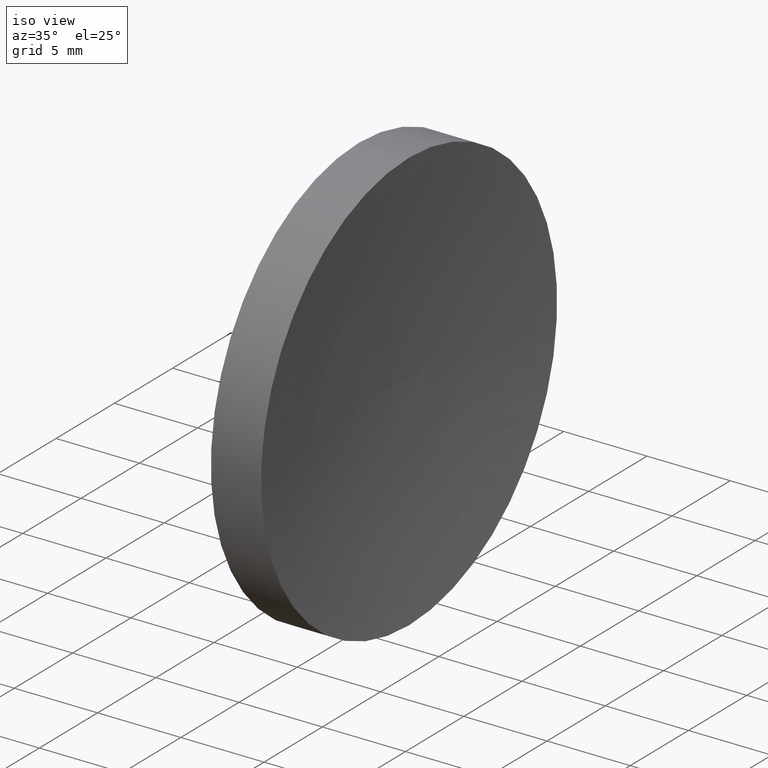
[diagram: clean part render]
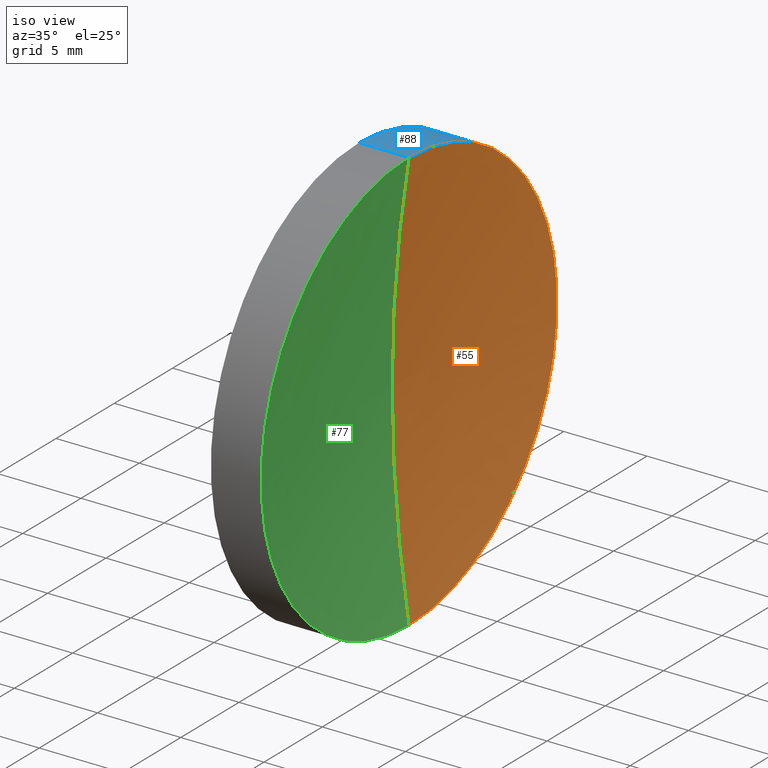
[diagram: same view with three faces highlighted in distinct colors, each labeled with its STEP entity id]
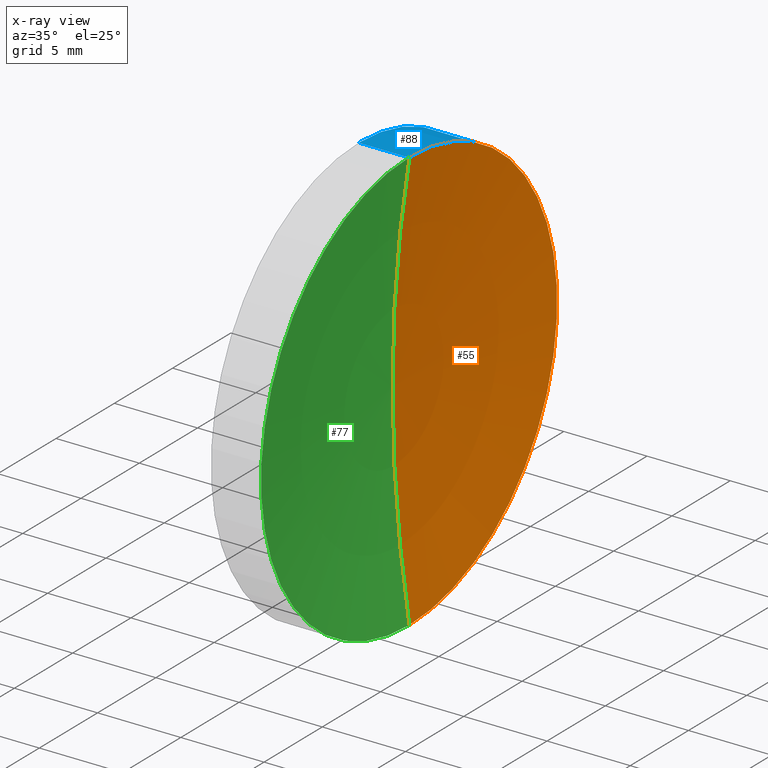
[diagram: x-ray of the same camera — body ghosted, the three highlighted faces saturated]
A machine part, iso view with three faces highlighted in distinct colors.
The next image is the same camera in x-ray (body ghosted, the three faces saturated) — at least one of them is partly hidden behind the body in this view.
Their STEP definitions:

[orange] entity #55 — the highlighted toroidal blend (fillet) surface has major radius 0.0214 mm and minor (blend) radius 80.23 mm.
#2 = CARTESIAN_POINT ( 'NONE',  ( 201.5929279294802000, 71.19398908659370300, 0.02143188014522290400 ) ) ;
#3 = DIRECTION ( 'NONE',  ( 0.0000000000000000000, 0.0000000000000000000, 1.000000000000000000 ) ) ;
#12 = DIRECTION ( 'NONE',  ( 0.0000000000000000000, -1.000000000000000000, 0.0000000000000000000 ) ) ;
#15 = ORIENTED_EDGE ( 'NONE', *, *, #105, .T. ) ;
#34 = FACE_OUTER_BOUND ( 'NONE', #79, .T. ) ;
#35 = CARTESIAN_POINT ( 'NONE',  ( 122.3779162781598300, 71.19398908659370300, -12.69999999999996600 ) ) ;
#42 = CIRCLE ( 'NONE', #161, 80.22999999999996100 ) ;
#43 = AXIS2_PLACEMENT_3D ( 'NONE', #65, #82, #3 ) ;
#51 = CIRCLE ( 'NONE', #43, 12.69999999999997400 ) ;
#55 = ADVANCED_FACE ( 'NONE', ( #34 ), #160, .F. ) ;
#63 = DIRECTION ( 'NONE',  ( 0.0000000000000000000, -1.729750443451883900E-016, 1.000000000000000000 ) ) ;
#65 = CARTESIAN_POINT ( 'NONE',  ( 122.3779162781598300, 71.19398908659370300, 0.0000000000000000000 ) ) ;
#66 = CIRCLE ( 'NONE', #128, 80.22999999999996100 ) ;
#75 = CARTESIAN_POINT ( 'NONE',  ( 122.3779162781598300, 71.19398908659370300, 12.69999999999996600 ) ) ;
#79 = EDGE_LOOP ( 'NONE', ( #149, #117, #15 ) ) ;
#80 = DIRECTION ( 'NONE',  ( 0.0000000000000000000, 0.0000000000000000000, 1.000000000000000000 ) ) ;
#82 = DIRECTION ( 'NONE',  ( -1.000000000000000000, -0.0000000000000000000, -0.0000000000000000000 ) ) ;
#87 = VERTEX_POINT ( 'NONE', #116 ) ;
#90 = VERTEX_POINT ( 'NONE', #35 ) ;
#95 = AXIS2_PLACEMENT_3D ( 'NONE', #115, #135, #80 ) ;
#105 = EDGE_CURVE ( 'NONE', #155, #87, #42, .T. ) ;
#115 = CARTESIAN_POINT ( 'NONE',  ( 201.5929279294802000, 71.19398908659370300, 0.0000000000000000000 ) ) ;
#116 = CARTESIAN_POINT ( 'NONE',  ( 121.3629307920347200, 71.19398908659370300, 0.0000000000000000000 ) ) ;
#117 = ORIENTED_EDGE ( 'NONE', *, *, #143, .F. ) ;
#118 = DIRECTION ( 'NONE',  ( 0.0000000000000000000, 0.0000000000000000000, -1.000000000000000000 ) ) ;
#128 = AXIS2_PLACEMENT_3D ( 'NONE', #2, #153, #63 ) ;
#132 = EDGE_CURVE ( 'NONE', #90, #87, #66, .T. ) ;
#135 = DIRECTION ( 'NONE',  ( -1.000000000000000000, -0.0000000000000000000, -0.0000000000000000000 ) ) ;
#143 = EDGE_CURVE ( 'NONE', #155, #90, #51, .T. ) ;
#149 = ORIENTED_EDGE ( 'NONE', *, *, #132, .F. ) ;
#150 = CARTESIAN_POINT ( 'NONE',  ( 201.5929279294802000, 71.19398908659370300, -0.02143188014522290400 ) ) ;
#153 = DIRECTION ( 'NONE',  ( -0.0000000000000000000, 1.000000000000000000, 1.224646799147353200E-016 ) ) ;
#155 = VERTEX_POINT ( 'NONE', #75 ) ;
#160 = TOROIDAL_SURFACE ( 'NONE', #95, -0.02143188014522290400, 80.22999999999996100 ) ;
#161 = AXIS2_PLACEMENT_3D ( 'NONE', #150, #12, #118 ) ;

[blue] entity #88 — the highlighted cylindrical surface (partial cylindrical patch) has radius 12.7 mm, axis along (-1, -0, -0).
#1 = ORIENTED_EDGE ( 'NONE', *, *, #23, .T. ) ;
#3 = DIRECTION ( 'NONE',  ( 0.0000000000000000000, 0.0000000000000000000, 1.000000000000000000 ) ) ;
#4 = CYLINDRICAL_SURFACE ( 'NONE', #152, 12.69999999999998900 ) ;
#6 = CIRCLE ( 'NONE', #141, 12.70000000000000300 ) ;
#21 = DIRECTION ( 'NONE',  ( -1.000000000000000000, -0.0000000000000000000, -0.0000000000000000000 ) ) ;
#22 = ORIENTED_EDGE ( 'NONE', *, *, #32, .F. ) ;
#23 = EDGE_CURVE ( 'NONE', #90, #123, #156, .T. ) ;
#30 = VECTOR ( 'NONE', #21, 1000.000000000000000 ) ;
#32 = EDGE_CURVE ( 'NONE', #46, #123, #6, .T. ) ;
#35 = CARTESIAN_POINT ( 'NONE',  ( 122.3779162781598300, 71.19398908659370300, -12.69999999999996600 ) ) ;
#43 = AXIS2_PLACEMENT_3D ( 'NONE', #65, #82, #3 ) ;
#45 = EDGE_CURVE ( 'NONE', #155, #46, #130, .T. ) ;
#46 = VERTEX_POINT ( 'NONE', #110 ) ;
#49 = DIRECTION ( 'NONE',  ( -1.000000000000000000, -0.0000000000000000000, -0.0000000000000000000 ) ) ;
#51 = CIRCLE ( 'NONE', #43, 12.69999999999997400 ) ;
#65 = CARTESIAN_POINT ( 'NONE',  ( 122.3779162781598300, 71.19398908659370300, 0.0000000000000000000 ) ) ;
#71 = DIRECTION ( 'NONE',  ( 0.0000000000000000000, 0.0000000000000000000, 1.000000000000000000 ) ) ;
#73 = CARTESIAN_POINT ( 'NONE',  ( 119.3629307920347200, 71.19398908659370300, 0.0000000000000000000 ) ) ;
#75 = CARTESIAN_POINT ( 'NONE',  ( 122.3779162781598300, 71.19398908659370300, 12.69999999999996600 ) ) ;
#81 = DIRECTION ( 'NONE',  ( -1.000000000000000000, -0.0000000000000000000, -0.0000000000000000000 ) ) ;
#82 = DIRECTION ( 'NONE',  ( -1.000000000000000000, -0.0000000000000000000, -0.0000000000000000000 ) ) ;
#88 = ADVANCED_FACE ( 'NONE', ( #134 ), #4, .T. ) ;
#90 = VERTEX_POINT ( 'NONE', #35 ) ;
#93 = CARTESIAN_POINT ( 'NONE',  ( 111.9552297575605700, 71.19398908659370300, 12.69999999999998900 ) ) ;
#94 = ORIENTED_EDGE ( 'NONE', *, *, #143, .T. ) ;
#98 = CARTESIAN_POINT ( 'NONE',  ( 119.3629307920347200, 71.19398908659370300, -12.70000000000000300 ) ) ;
#100 = DIRECTION ( 'NONE',  ( 0.0000000000000000000, 0.0000000000000000000, 1.000000000000000000 ) ) ;
#101 = VECTOR ( 'NONE', #81, 1000.000000000000000 ) ;
#107 = ORIENTED_EDGE ( 'NONE', *, *, #45, .F. ) ;
#110 = CARTESIAN_POINT ( 'NONE',  ( 119.3629307920347200, 71.19398908659370300, 12.70000000000000300 ) ) ;
#123 = VERTEX_POINT ( 'NONE', #98 ) ;
#130 = LINE ( 'NONE', #93, #101 ) ;
#133 = CARTESIAN_POINT ( 'NONE',  ( 111.9552297575605700, 71.19398908659370300, 0.0000000000000000000 ) ) ;
#134 = FACE_OUTER_BOUND ( 'NONE', #158, .T. ) ;
#141 = AXIS2_PLACEMENT_3D ( 'NONE', #73, #166, #71 ) ;
#143 = EDGE_CURVE ( 'NONE', #155, #90, #51, .T. ) ;
#152 = AXIS2_PLACEMENT_3D ( 'NONE', #133, #49, #100 ) ;
#155 = VERTEX_POINT ( 'NONE', #75 ) ;
#156 = LINE ( 'NONE', #163, #30 ) ;
#158 = EDGE_LOOP ( 'NONE', ( #94, #1, #22, #107 ) ) ;
#163 = CARTESIAN_POINT ( 'NONE',  ( 111.9552297575605700, 71.19398908659370300, -12.69999999999998900 ) ) ;
#166 = DIRECTION ( 'NONE',  ( -1.000000000000000000, -0.0000000000000000000, -0.0000000000000000000 ) ) ;

[green] entity #77 — the highlighted toroidal blend (fillet) surface has major radius 0.0214 mm and minor (blend) radius 80.23 mm.
#2 = CARTESIAN_POINT ( 'NONE',  ( 201.5929279294802000, 71.19398908659370300, 0.02143188014522290400 ) ) ;
#10 = DIRECTION ( 'NONE',  ( -1.000000000000000000, -0.0000000000000000000, -0.0000000000000000000 ) ) ;
#12 = DIRECTION ( 'NONE',  ( 0.0000000000000000000, -1.000000000000000000, 0.0000000000000000000 ) ) ;
#20 = DIRECTION ( 'NONE',  ( -1.000000000000000000, -0.0000000000000000000, -0.0000000000000000000 ) ) ;
#26 = ORIENTED_EDGE ( 'NONE', *, *, #27, .F. ) ;
#27 = EDGE_CURVE ( 'NONE', #90, #155, #120, .T. ) ;
#35 = CARTESIAN_POINT ( 'NONE',  ( 122.3779162781598300, 71.19398908659370300, -12.69999999999996600 ) ) ;
#38 = CARTESIAN_POINT ( 'NONE',  ( 122.3779162781598300, 71.19398908659370300, 0.0000000000000000000 ) ) ;
#42 = CIRCLE ( 'NONE', #161, 80.22999999999996100 ) ;
#60 = DIRECTION ( 'NONE',  ( 0.0000000000000000000, 0.0000000000000000000, 1.000000000000000000 ) ) ;
#63 = DIRECTION ( 'NONE',  ( 0.0000000000000000000, -1.729750443451883900E-016, 1.000000000000000000 ) ) ;
#64 = TOROIDAL_SURFACE ( 'NONE', #109, -0.02143188014522290400, 80.22999999999996100 ) ;
#66 = CIRCLE ( 'NONE', #128, 80.22999999999996100 ) ;
#72 = AXIS2_PLACEMENT_3D ( 'NONE', #38, #20, #60 ) ;
#75 = CARTESIAN_POINT ( 'NONE',  ( 122.3779162781598300, 71.19398908659370300, 12.69999999999996600 ) ) ;
#77 = ADVANCED_FACE ( 'NONE', ( #125 ), #64, .F. ) ;
#87 = VERTEX_POINT ( 'NONE', #116 ) ;
#90 = VERTEX_POINT ( 'NONE', #35 ) ;
#96 = DIRECTION ( 'NONE',  ( 0.0000000000000000000, 0.0000000000000000000, 1.000000000000000000 ) ) ;
#105 = EDGE_CURVE ( 'NONE', #155, #87, #42, .T. ) ;
#106 = ORIENTED_EDGE ( 'NONE', *, *, #105, .F. ) ;
#109 = AXIS2_PLACEMENT_3D ( 'NONE', #146, #10, #96 ) ;
#116 = CARTESIAN_POINT ( 'NONE',  ( 121.3629307920347200, 71.19398908659370300, 0.0000000000000000000 ) ) ;
#118 = DIRECTION ( 'NONE',  ( 0.0000000000000000000, 0.0000000000000000000, -1.000000000000000000 ) ) ;
#120 = CIRCLE ( 'NONE', #72, 12.69999999999997400 ) ;
#125 = FACE_OUTER_BOUND ( 'NONE', #144, .T. ) ;
#128 = AXIS2_PLACEMENT_3D ( 'NONE', #2, #153, #63 ) ;
#132 = EDGE_CURVE ( 'NONE', #90, #87, #66, .T. ) ;
#139 = ORIENTED_EDGE ( 'NONE', *, *, #132, .T. ) ;
#144 = EDGE_LOOP ( 'NONE', ( #26, #139, #106 ) ) ;
#146 = CARTESIAN_POINT ( 'NONE',  ( 201.5929279294802000, 71.19398908659370300, 0.0000000000000000000 ) ) ;
#150 = CARTESIAN_POINT ( 'NONE',  ( 201.5929279294802000, 71.19398908659370300, -0.02143188014522290400 ) ) ;
#153 = DIRECTION ( 'NONE',  ( -0.0000000000000000000, 1.000000000000000000, 1.224646799147353200E-016 ) ) ;
#155 = VERTEX_POINT ( 'NONE', #75 ) ;
#161 = AXIS2_PLACEMENT_3D ( 'NONE', #150, #12, #118 ) ;